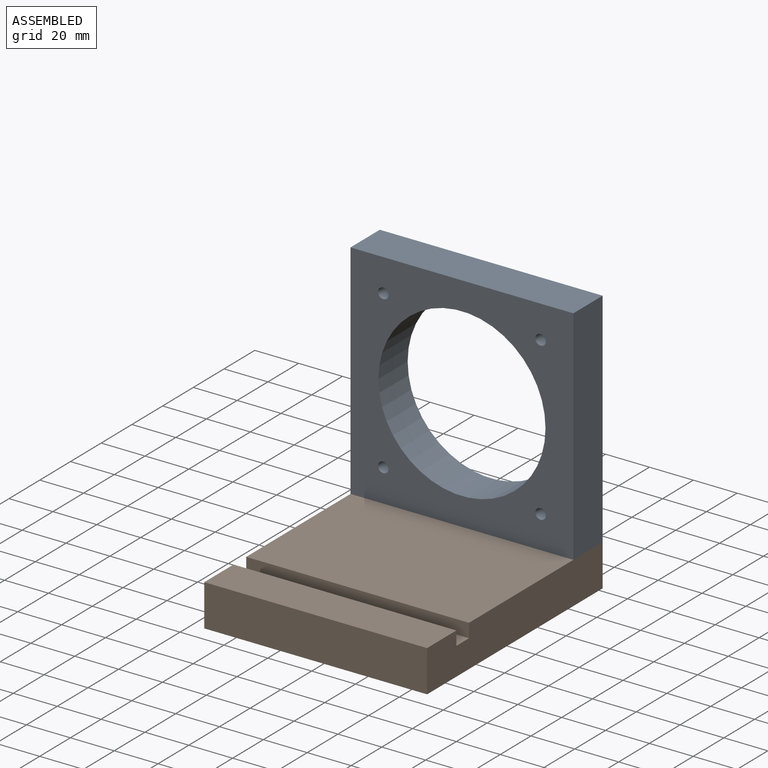
[diagram: assembled view]
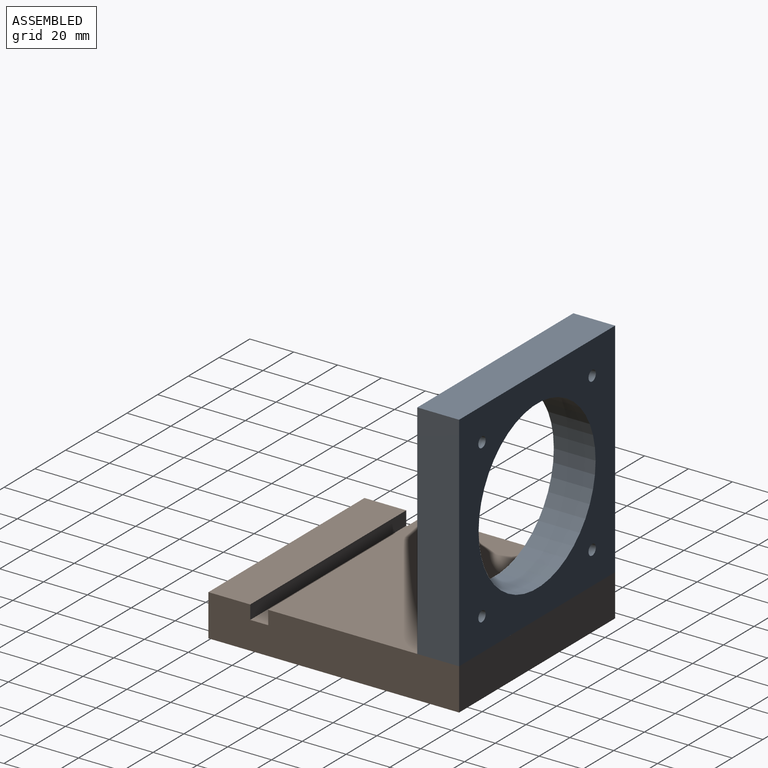
[diagram: assembled view, second angle]
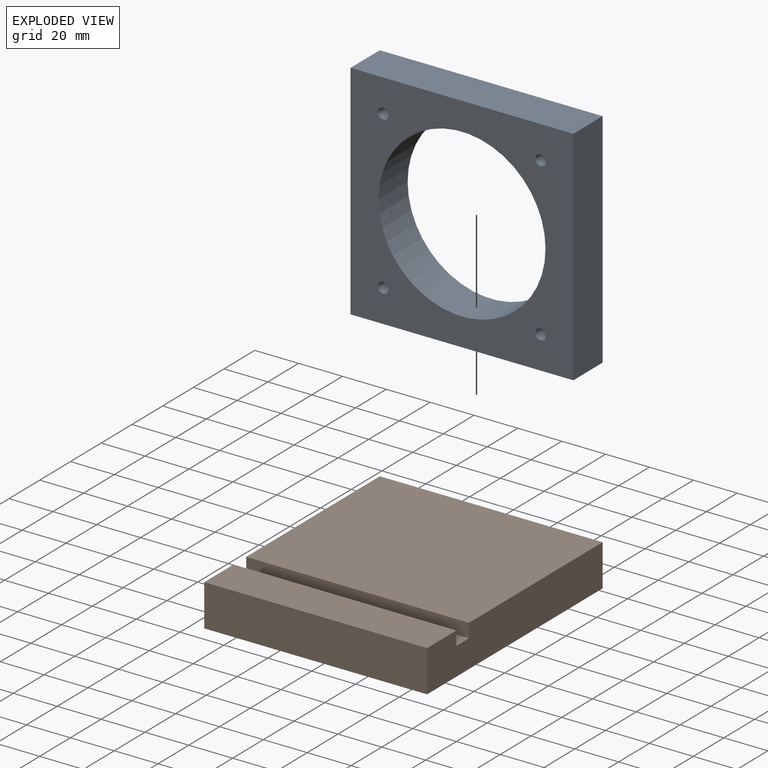
[diagram: exploded view]
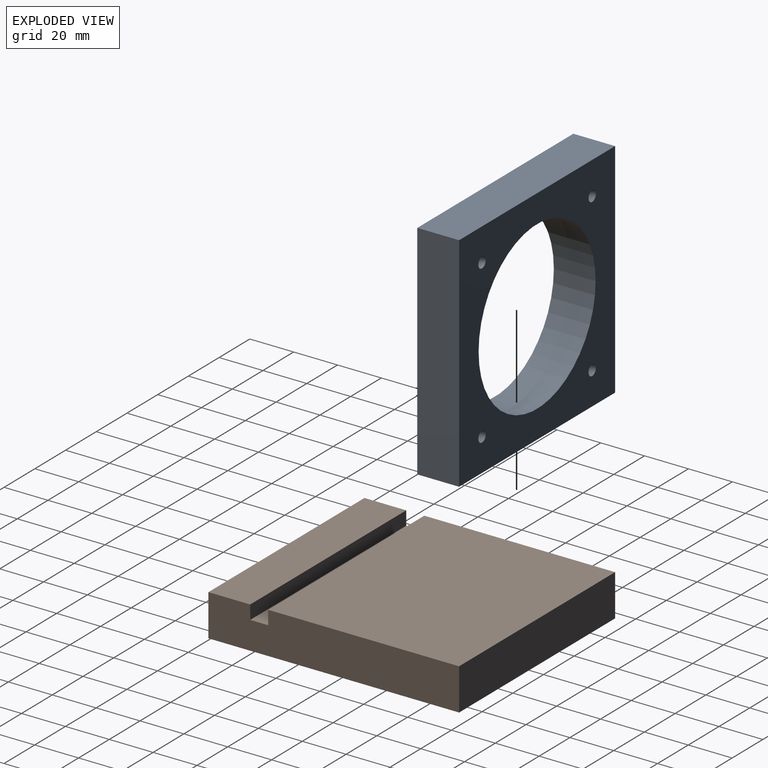
[diagram: exploded view, second angle]
ASSEMBLY  parts=2 mates=3
PART A: 11 faces, bbox 101.6x19.1x101.6 mm
  f0: plane 101.6x19.05mm, normal (0,0,-1), area 1935.5mm2, adj f1,f4,f5,f6
  f1: plane 101.6x19.05mm, normal (-1,0,0), area 1935.5mm2, adj f0,f2,f5,f6
  f2: plane 101.6x19.05mm, normal (0,0,1), area 1935.5mm2, adj f1,f4,f5,f6
  f3: cylinder r=38.1mm len=76.2mm, axis (0,1,0), area 4560.4mm2, adj f5,f6
  f4: plane 101.6x19.05mm, normal (1,0,0), area 1935.5mm2, adj f0,f2,f5,f6
  f5: plane 101.6x101.6mm, normal (0,-1,0), area 5690.6mm2, adj f0,f1,f2,f3,f4,f7,f8,f9
  f6: plane 101.6x101.6mm, normal (0,1,0), area 5690.6mm2, adj f0,f1,f2,f3,f4,f7,f8,f9
  f7: cylinder r=2.39mm len=19.05mm, axis (0,1,0), area 285.8mm2, adj f5,f6
  f8: cylinder r=2.39mm len=19.05mm, axis (0,1,0), area 285.8mm2, adj f5,f6
  f9: cylinder r=2.39mm len=19.05mm, axis (0,1,0), area 285.8mm2, adj f5,f6
  f10: cylinder r=2.39mm len=19.05mm, axis (0,1,0), area 285.8mm2, adj f5,f6
PART B: 10 faces, bbox 101.6x114.3x19.1 mm
  f0: plane 101.6x19.05mm, normal (0,0,1), area 1935.5mm2, adj f1,f2,f4,f8
  f1: plane 114.3x19.05mm, normal (-1,0,0), area 2125mm2, adj f0,f3,f4,f5,f6,f7,f8,f9
  f2: plane 114.3x19.05mm, normal (1,0,0), area 2125mm2, adj f0,f3,f4,f5,f6,f7,f8,f9
  f3: plane 101.6x19.05mm, normal (0,1,0), area 1935.5mm2, adj f1,f2,f5,f6
  f4: plane 101.6x19.05mm, normal (0,-1,0), area 1935.5mm2, adj f0,f1,f2,f5
  f5: plane 114.3x101.6mm, normal (0,0,-1), area 11612.9mm2, adj f1,f2,f3,f4
  f6: plane 101.6x87mm, normal (0,0,1), area 8838.7mm2, adj f1,f2,f3,f7
  f7: plane 101.6x6.35mm, normal (0,-1,0), area 645.2mm2, adj f1,f2,f6,f9
  f8: plane 101.6x6.35mm, normal (0,1,0), area 645.2mm2, adj f0,f1,f2,f9
  f9: plane 101.6x8.26mm, normal (0,0,1), area 838.7mm2, adj f1,f2,f7,f8
PLACE A t=(-0.06,-0.12,60.04)mm
PLACE B t=(-0.06,-0.12,60.04)mm
MATE planar A.f3 <-> B.f3  axis (0,1,0) through (-0.06,57.03,60.04)mm
MATE planar B.f2 <-> A.f4  axis (1,0,0) through (50.74,0.72,-0.44)mm
MATE planar A.f0 <-> B.f6  axis (0,0,-1) through (-0.06,47.51,9.24)mm
